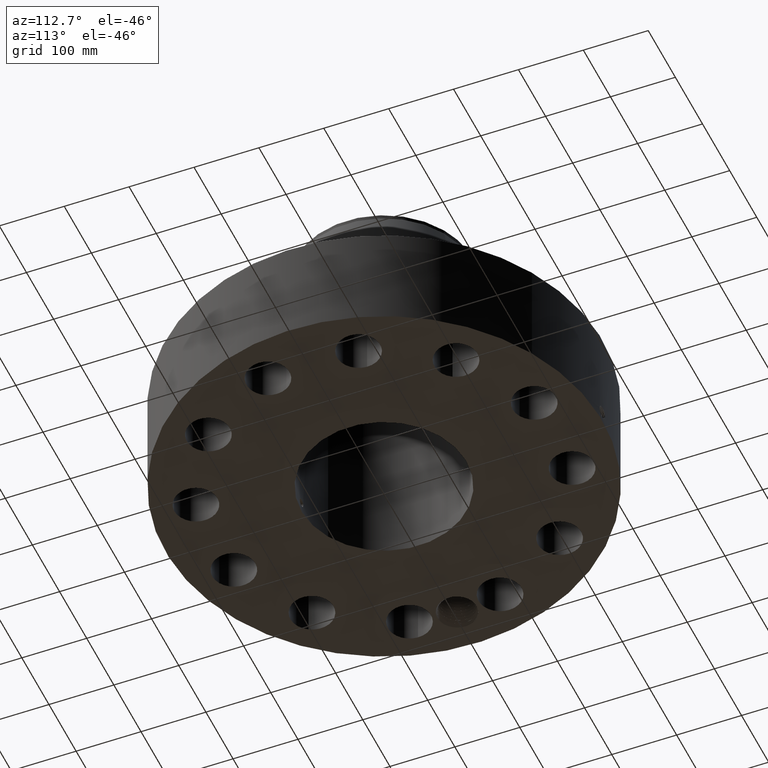
[diagram: clean part render]
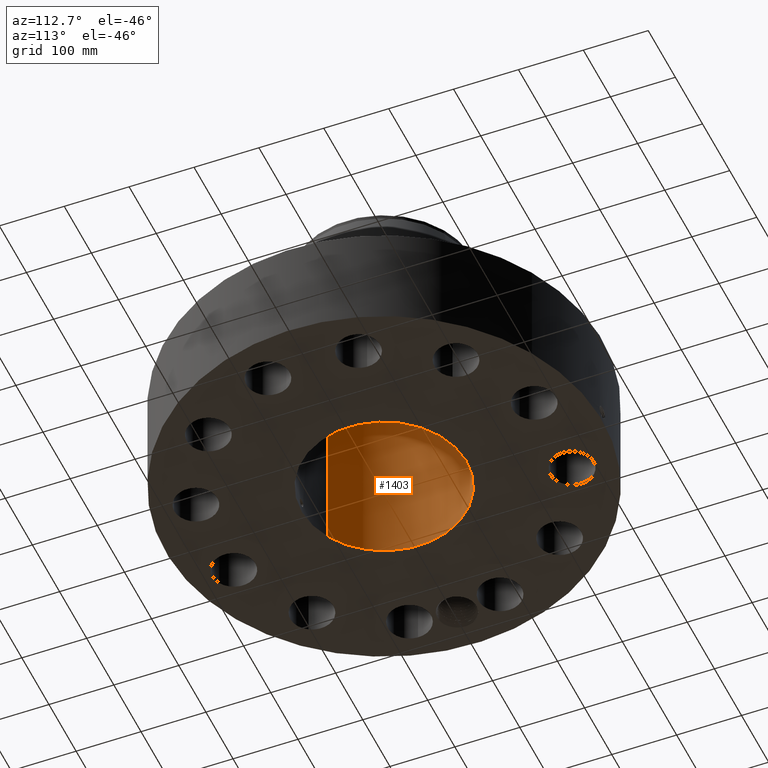
[diagram: same view with one face highlighted and labeled with its STEP entity id]
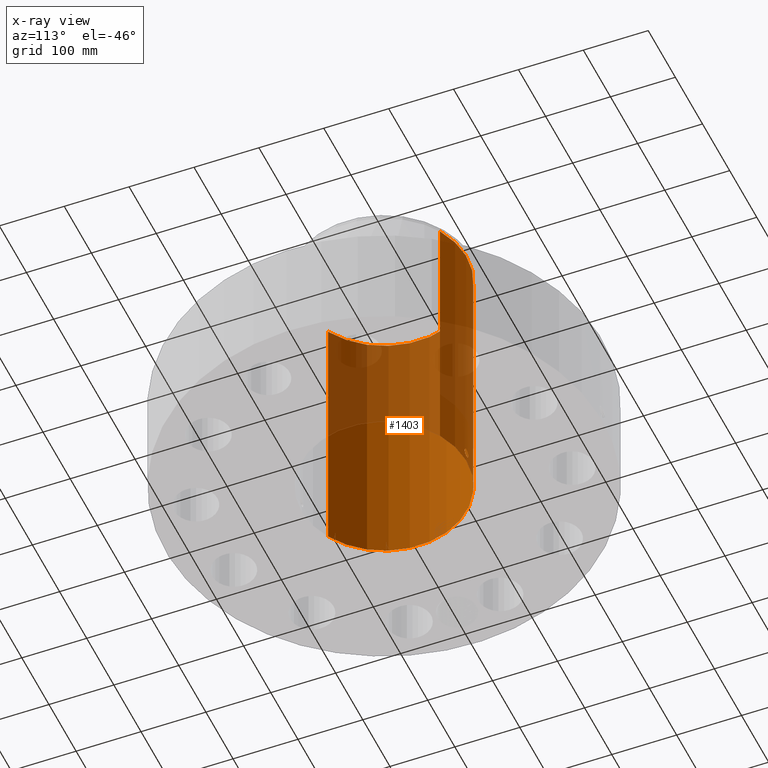
[diagram: x-ray of the same camera — body ghosted, the highlighted face saturated]
A machine part, auxiliary view. The second image highlights one B-rep face of the part: STEP entity #1403.
The next image is the same camera in x-ray: the body ghosted, the highlighted face saturated — about 47% of this face is hidden behind the body in this view.
In plain terms, the highlighted cylindrical surface (partial cylindrical patch) has radius 127.254 mm, axis along (0, 0, -1).
Its self-contained STEP definition (entity closure, byte-faithful):
#266=AXIS2_PLACEMENT_3D('Circle Axis2P3D',#264,#265,$) ;
#1280=AXIS2_PLACEMENT_3D('Cylinder Axis2P3D',#1277,#1278,#1279) ;
#1352=AXIS2_PLACEMENT_3D('Circle Axis2P3D',#1350,#1351,$) ;
#259=CARTESIAN_POINT('Vertex',(2.40192194842,4.39668863509,0.250000000001)) ;
#261=CARTESIAN_POINT('Vertex',(-2.40192194842,-4.39668863509,0.250000000001)) ;
#264=CARTESIAN_POINT('Axis2P3D Location',(0.,0.,0.250000000001)) ;
#1277=CARTESIAN_POINT('Axis2P3D Location',(0.,0.,8.50000000003)) ;
#1286=CARTESIAN_POINT('Vertex',(2.40192194842,4.39668863509,16.7500000001)) ;
#1288=CARTESIAN_POINT('Vertex',(-2.40192194842,-4.39668863509,16.7500000001)) ;
#1291=CARTESIAN_POINT('Line Origine',(2.40192194842,4.39668863509,8.50000000003)) ;
#1296=CARTESIAN_POINT('Line Origine',(-2.40192194842,-4.39668863509,8.50000000003)) ;
#1350=CARTESIAN_POINT('Axis2P3D Location',(0.,0.,16.7500000001)) ;
#1362=CARTESIAN_POINT('Control Point',(0.219395640473,5.0051938577,1.05985638466)) ;
#1363=CARTESIAN_POINT('Control Point',(0.20692172675,5.00574063418,1.08268973057)) ;
#1364=CARTESIAN_POINT('Control Point',(0.191478298892,5.00637864121,1.10389861739)) ;
#1365=CARTESIAN_POINT('Control Point',(0.173345318112,5.00705858161,1.12297012581)) ;
#1366=CARTESIAN_POINT('Control Point',(0.112137495197,5.00902515689,1.17244844345)) ;
#1367=CARTESIAN_POINT('Control Point',(0.034983494124,5.0103028337,1.19597315605)) ;
#1368=CARTESIAN_POINT('Control Point',(-0.0195586093956,5.01039831415,1.19761228098)) ;
#1369=CARTESIAN_POINT('Control Point',(-0.12414346388,5.00899203585,1.17247081618)) ;
#1370=CARTESIAN_POINT('Control Point',(-0.203188052598,5.00608110487,1.09956136148)) ;
#1371=CARTESIAN_POINT('Control Point',(-0.232165482161,5.00464790126,1.05334756005)) ;
#1372=CARTESIAN_POINT('Control Point',(-0.255832984997,5.00346793306,0.975190939779)) ;
#1373=CARTESIAN_POINT('Control Point',(-0.24829610309,5.00384337312,0.895801483619)) ;
#1374=CARTESIAN_POINT('Control Point',(-0.242062009687,5.00415848896,0.869217645117)) ;
#1375=CARTESIAN_POINT('Control Point',(-0.232323664128,5.00462717595,0.843808203918)) ;
#1376=CARTESIAN_POINT('Control Point',(-0.219395640473,5.0051938577,0.820143615352)) ;
#1377=CARTESIAN_POINT('Vertex',(0.219395640473,5.0051938577,1.05985638466)) ;
#1379=CARTESIAN_POINT('Vertex',(-0.219395640473,5.0051938577,0.820143615352)) ;
#1383=CARTESIAN_POINT('Control Point',(-0.219395640473,5.0051938577,0.820143615352)) ;
#1384=CARTESIAN_POINT('Control Point',(-0.206921726756,5.00574063418,0.79731026945)) ;
#1385=CARTESIAN_POINT('Control Point',(-0.191478298904,5.00637864121,0.776101382638)) ;
#1386=CARTESIAN_POINT('Control Point',(-0.173345318097,5.00705858161,0.757029874184)) ;
#1387=CARTESIAN_POINT('Control Point',(-0.112137495194,5.00902515689,0.707551556563)) ;
#1388=CARTESIAN_POINT('Control Point',(-0.0349834941395,5.0103028337,0.684026843959)) ;
#1389=CARTESIAN_POINT('Control Point',(0.0195586094065,5.01039831415,0.68238771903)) ;
#1390=CARTESIAN_POINT('Control Point',(0.124143463861,5.00899203585,0.707529183823)) ;
#1391=CARTESIAN_POINT('Control Point',(0.203188052565,5.00608110487,0.780438638498)) ;
#1392=CARTESIAN_POINT('Control Point',(0.232165482173,5.00464790126,0.826652439998)) ;
#1393=CARTESIAN_POINT('Control Point',(0.255832985001,5.00346793306,0.904809060269)) ;
#1394=CARTESIAN_POINT('Control Point',(0.248296103086,5.00384337312,0.984198516431)) ;
#1395=CARTESIAN_POINT('Control Point',(0.242062009703,5.00415848896,1.01078235485)) ;
#1396=CARTESIAN_POINT('Control Point',(0.232323664139,5.00462717594,1.03619179607)) ;
#1397=CARTESIAN_POINT('Control Point',(0.219395640473,5.0051938577,1.05985638466)) ;
#265=DIRECTION('Axis2P3D Direction',(0.,0.,-0.0393700787402)) ;
#1278=DIRECTION('Axis2P3D Direction',(0.,0.,-0.0393700787402)) ;
#1279=DIRECTION('Axis2P3D XDirection',(-0.0188750212049,-0.0345504945626,0.)) ;
#1292=DIRECTION('Vector Direction',(0.,0.,-0.0393700787402)) ;
#1297=DIRECTION('Vector Direction',(0.,0.,-0.0393700787402)) ;
#1351=DIRECTION('Axis2P3D Direction',(0.,0.,-0.0393700787402)) ;
#1293=VECTOR('Line Direction',#1292,0.0393700787402) ;
#1298=VECTOR('Line Direction',#1297,0.0393700787402) ;
#1356=ORIENTED_EDGE('',*,*,#1354,.F.) ;
#1357=ORIENTED_EDGE('',*,*,#1300,.T.) ;
#1358=ORIENTED_EDGE('',*,*,#268,.T.) ;
#1359=ORIENTED_EDGE('',*,*,#1295,.F.) ;
#1400=ORIENTED_EDGE('',*,*,#1381,.F.) ;
#1401=ORIENTED_EDGE('',*,*,#1398,.F.) ;
#1402=FACE_BOUND('',#1399,.T.) ;
#1403=ADVANCED_FACE('PartBody',(#1360,#1402),#1281,.F.) ;
#1361=B_SPLINE_CURVE_WITH_KNOTS('',5,(#1362,#1363,#1364,#1365,#1366,#1367,#1368,#1369,#1370,#1371,#1372,#1373,#1374,#1375,#1376),.UNSPECIFIED.,.F.,.U.,(6,3,3,3,6),(0.,4.67408027558,14.0220982214,23.3720849124,28.2163239948),.UNSPECIFIED.) ;
#1382=B_SPLINE_CURVE_WITH_KNOTS('',5,(#1383,#1384,#1385,#1386,#1387,#1388,#1389,#1390,#1391,#1392,#1393,#1394,#1395,#1396,#1397),.UNSPECIFIED.,.F.,.U.,(6,3,3,3,6),(0.,4.67408027366,14.0220982183,23.3720849056,28.216323992),.UNSPECIFIED.) ;
#267=CIRCLE('generated circle',#266,5.01000000002) ;
#1353=CIRCLE('generated circle',#1352,5.01000000002) ;
#1281=CYLINDRICAL_SURFACE('generated cylinder',#1280,5.01000000002) ;
#268=EDGE_CURVE('',#262,#260,#267,.T.) ;
#1295=EDGE_CURVE('',#1287,#260,#1294,.T.) ;
#1300=EDGE_CURVE('',#1289,#262,#1299,.T.) ;
#1354=EDGE_CURVE('',#1289,#1287,#1353,.T.) ;
#1381=EDGE_CURVE('',#1378,#1380,#1361,.T.) ;
#1398=EDGE_CURVE('',#1380,#1378,#1382,.T.) ;
#1355=EDGE_LOOP('',(#1356,#1357,#1358,#1359)) ;
#1399=EDGE_LOOP('',(#1400,#1401)) ;
#1360=FACE_OUTER_BOUND('',#1355,.T.) ;
#1294=LINE('Line',#1291,#1293) ;
#1299=LINE('Line',#1296,#1298) ;
#260=VERTEX_POINT('',#259) ;
#262=VERTEX_POINT('',#261) ;
#1287=VERTEX_POINT('',#1286) ;
#1289=VERTEX_POINT('',#1288) ;
#1378=VERTEX_POINT('',#1377) ;
#1380=VERTEX_POINT('',#1379) ;